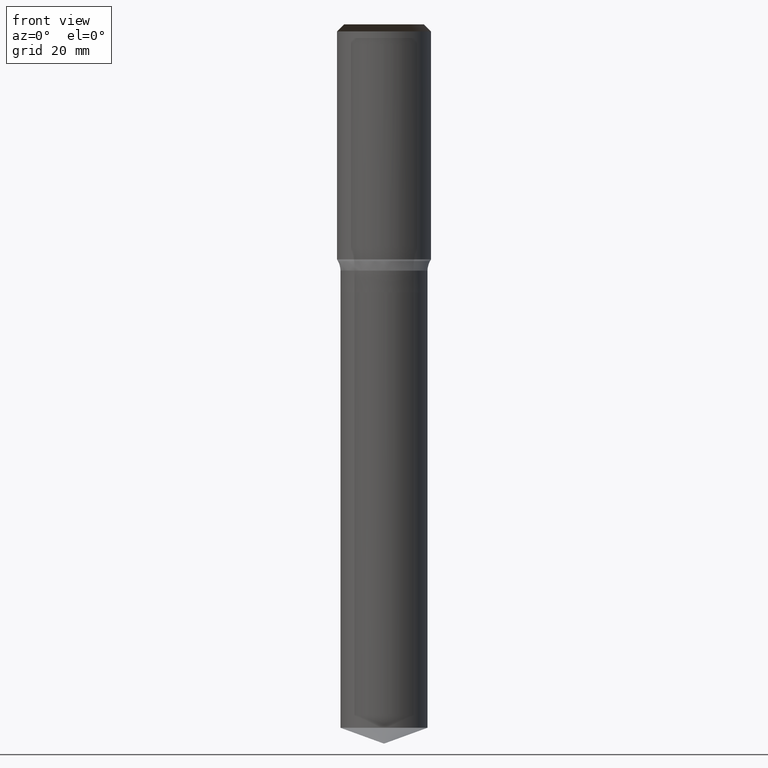
[diagram: clean part render]
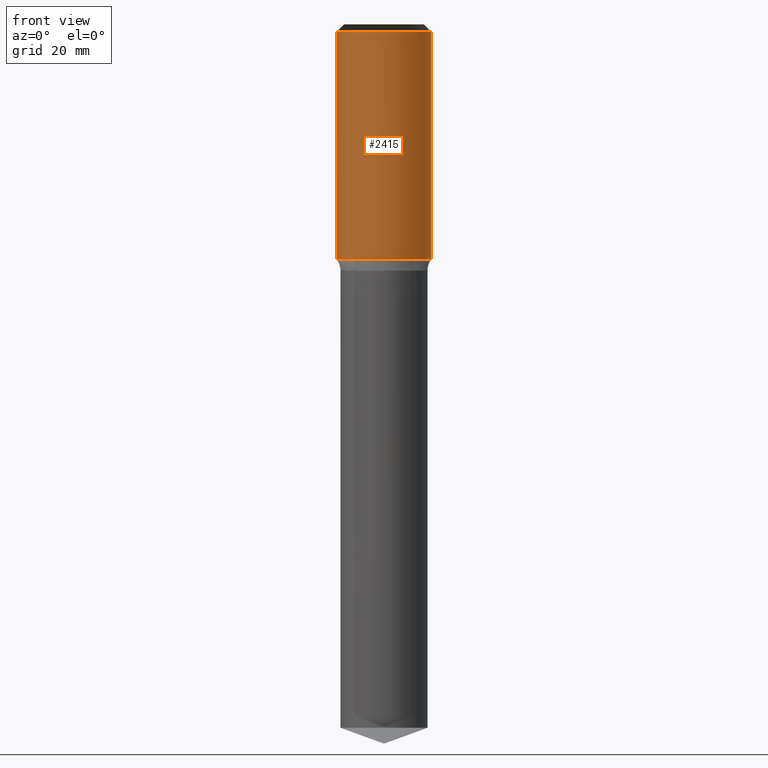
[diagram: same view with one face highlighted and labeled with its STEP entity id]
A machine part, front view. The second image highlights one B-rep face of the part: STEP entity #2415.
In plain terms, the highlighted face is a freeform B-spline surface patch.
Its self-contained STEP definition (entity closure, byte-faithful):
#2041=CARTESIAN_POINT('',(10.0,0.0,0.0));
#2045=CARTESIAN_POINT('',(-10.0,0.0,0.0));
#2046=CARTESIAN_POINT('',(10.0,0.0,48.5));
#2050=CARTESIAN_POINT('',(-10.0,0.0,48.5));
#2066=CARTESIAN_POINT('',(-10.0,-10.0,0.0));
#2067=CARTESIAN_POINT('',(0.0,-10.0,0.0));
#2068=CARTESIAN_POINT('',(10.0,-10.0,0.0));
#2069=CARTESIAN_POINT('',(-10.0,-10.0,48.5));
#2070=CARTESIAN_POINT('',(0.0,-10.0,48.5));
#2071=CARTESIAN_POINT('',(10.0,-10.0,48.5));
#2396=(
BOUNDED_SURFACE()
B_SPLINE_SURFACE(1,2,(
(#2045,#2066,#2067,#2068,#2041),
(#2050,#2069,#2070,#2071,#2046)
), .UNSPECIFIED.,.F.,.F.,.F.)
B_SPLINE_SURFACE_WITH_KNOTS((2,2),(3,2,3),(
0.0,1.0),(
0.0,0.5,1.0), .UNSPECIFIED.)
GEOMETRIC_REPRESENTATION_ITEM()
RATIONAL_B_SPLINE_SURFACE(((1.0,0.707106781187,1.0,0.707106781187,1.0),
(1.0,0.707106781187,1.0,0.707106781187,1.0)
))
REPRESENTATION_ITEM('')
SURFACE()
);
#2397=(
BOUNDED_CURVE()
B_SPLINE_CURVE(2,(#2041,#2068,#2067,#2066,#2045),.UNSPECIFIED.,.F.,.F.)
B_SPLINE_CURVE_WITH_KNOTS((3,2,3),
(0.0,0.5,1.0),.UNSPECIFIED.)
CURVE()
GEOMETRIC_REPRESENTATION_ITEM()
RATIONAL_B_SPLINE_CURVE((1.0,0.707106781187,1.0,0.707106781187,1.0))
REPRESENTATION_ITEM('')
);
#2398=(
BOUNDED_CURVE()
B_SPLINE_CURVE(1,(#2045,#2050),.UNSPECIFIED.,.F.,.F.)
B_SPLINE_CURVE_WITH_KNOTS((2,2),
(0.0,1.0),.UNSPECIFIED.)
CURVE()
GEOMETRIC_REPRESENTATION_ITEM()
RATIONAL_B_SPLINE_CURVE((1.0,1.0))
REPRESENTATION_ITEM('')
);
#2399=(
BOUNDED_CURVE()
B_SPLINE_CURVE(2,(#2050,#2069,#2070,#2071,#2046),.UNSPECIFIED.,.F.,.F.)
B_SPLINE_CURVE_WITH_KNOTS((3,2,3),
(0.0,0.5,1.0),.UNSPECIFIED.)
CURVE()
GEOMETRIC_REPRESENTATION_ITEM()
RATIONAL_B_SPLINE_CURVE((1.0,0.707106781187,1.0,0.707106781187,1.0))
REPRESENTATION_ITEM('')
);
#2400=(
BOUNDED_CURVE()
B_SPLINE_CURVE(1,(#2046,#2041),.UNSPECIFIED.,.F.,.F.)
B_SPLINE_CURVE_WITH_KNOTS((2,2),
(0.0,1.0),.UNSPECIFIED.)
CURVE()
GEOMETRIC_REPRESENTATION_ITEM()
RATIONAL_B_SPLINE_CURVE((1.0,1.0))
REPRESENTATION_ITEM('')
);
#2401=VERTEX_POINT('',#2041);
#2402=VERTEX_POINT('',#2045);
#2403=VERTEX_POINT('',#2046);
#2404=VERTEX_POINT('',#2050);
#2405=EDGE_CURVE('',#2401,#2402,#2397,.T.);
#2406=EDGE_CURVE('',#2402,#2404,#2398,.T.);
#2407=EDGE_CURVE('',#2404,#2403,#2399,.T.);
#2408=EDGE_CURVE('',#2403,#2401,#2400,.T.);
#2409=ORIENTED_EDGE('',*,*,#2405,.T.);
#2410=ORIENTED_EDGE('',*,*,#2406,.T.);
#2411=ORIENTED_EDGE('',*,*,#2407,.T.);
#2412=ORIENTED_EDGE('',*,*,#2408,.T.);
#2413=EDGE_LOOP('',(#2409,#2410,#2411,#2412));
#2414=FACE_OUTER_BOUND('',#2413,.T.);
#2415=ADVANCED_FACE('',(#2414),#2396,.T.);